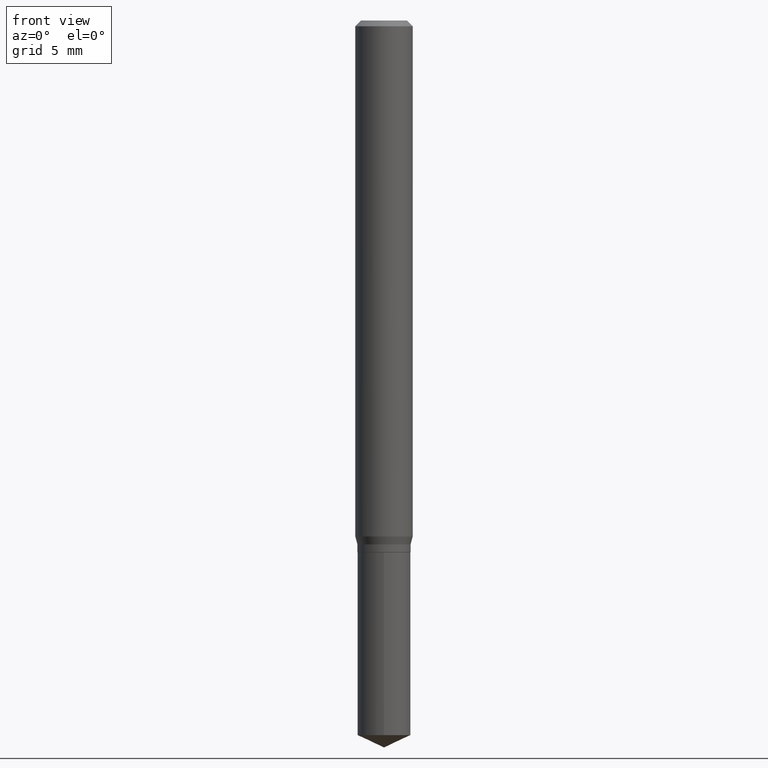
[diagram: clean part render]
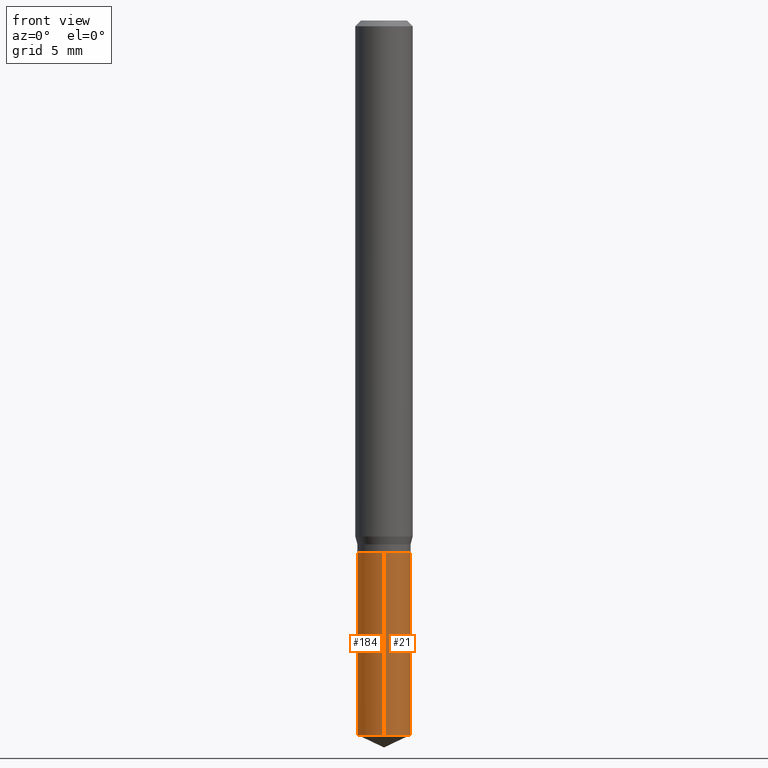
[diagram: same view with one multi-face feature highlighted, each face labeled with its STEP entity id]
A machine part, front view. The highlighted faces form ONE feature: a constant-radius fillet chain: 2 tangent blend faces with common blend radius 1.3894 mm. The faces share edges in the B-rep.
Their STEP definitions:
[1] entity #21 (Cylinder):
#18 = CARTESIAN_POINT ( 'NONE',  ( 3.886668764608105865E-16, 0.05469999999999484996, -1.470592971098921842 ) ) ;
#21 = ADVANCED_FACE ( 'NONE', ( #84 ), #81, .T. ) ;
#42 = CARTESIAN_POINT ( 'NONE',  ( 3.886668764608106358E-16, 0.05469999999999616835, -1.094500000000000028 ) ) ;
#49 = DIRECTION ( 'NONE',  ( -2.445458899330790108E-29, 3.491495526022433599E-15, 1.000000000000000000 ) ) ;
#56 = AXIS2_PLACEMENT_3D ( 'NONE', #443, #100, #404 ) ;
#79 = EDGE_CURVE ( 'NONE', #289, #358, #394, .T. ) ;
#81 = CYLINDRICAL_SURFACE ( 'NONE', #284, 0.05469999999999999862 ) ;
#83 = CARTESIAN_POINT ( 'NONE',  ( -3.819680584694119646E-16, -0.05470000000000382195, -1.094499999999999806 ) ) ;
#84 = FACE_OUTER_BOUND ( 'NONE', #108, .T. ) ;
#94 = CARTESIAN_POINT ( 'NONE',  ( 2.676565608369631794E-29, -3.821426325363822773E-15, -1.094499999999999806 ) ) ;
#100 = DIRECTION ( 'NONE',  ( -2.445458899330790108E-29, 3.491495526022433205E-15, 1.000000000000000000 ) ) ;
#108 = EDGE_LOOP ( 'NONE', ( #232, #392, #454, #221 ) ) ;
#126 = CARTESIAN_POINT ( 'NONE',  ( 2.676565608369631794E-29, -3.821426325363822773E-15, -1.094499999999999806 ) ) ;
#164 = LINE ( 'NONE', #83, #403 ) ;
#201 = EDGE_CURVE ( 'NONE', #408, #442, #217, .T. ) ;
#217 = CIRCLE ( 'NONE', #56, 0.05469999999999999862 ) ;
#220 = CARTESIAN_POINT ( 'NONE',  ( -3.819680584694026955E-16, -0.05470000000000511259, -1.470592971098921398 ) ) ;
#221 = ORIENTED_EDGE ( 'NONE', *, *, #435, .F. ) ;
#232 = ORIENTED_EDGE ( 'NONE', *, *, #201, .T. ) ;
#246 = VECTOR ( 'NONE', #310, 39.37007874015748143 ) ;
#266 = DIRECTION ( 'NONE',  ( -2.445458899330790108E-29, 3.491495526022433205E-15, 1.000000000000000000 ) ) ;
#267 = CARTESIAN_POINT ( 'NONE',  ( 3.886668764608015146E-16, 0.05469999999999617529, -1.094500000000000028 ) ) ;
#276 = LINE ( 'NONE', #267, #246 ) ;
#284 = AXIS2_PLACEMENT_3D ( 'NONE', #126, #266, #416 ) ;
#289 = VERTEX_POINT ( 'NONE', #441 ) ;
#310 = DIRECTION ( 'NONE',  ( -2.445458899330790108E-29, 3.491495526022433599E-15, 1.000000000000000000 ) ) ;
#358 = VERTEX_POINT ( 'NONE', #42 ) ;
#361 = DIRECTION ( 'NONE',  ( -6.982962677686265922E-15, -1.000000000000000000, 2.497118824190368439E-15 ) ) ;
#374 = AXIS2_PLACEMENT_3D ( 'NONE', #94, #472, #361 ) ;
#392 = ORIENTED_EDGE ( 'NONE', *, *, #395, .T. ) ;
#394 = CIRCLE ( 'NONE', #374, 0.05469999999999999862 ) ;
#395 = EDGE_CURVE ( 'NONE', #442, #358, #276, .T. ) ;
#403 = VECTOR ( 'NONE', #49, 39.37007874015748143 ) ;
#404 = DIRECTION ( 'NONE',  ( -6.982962677686265922E-15, -1.000000000000000000, 4.994237648380736877E-15 ) ) ;
#408 = VERTEX_POINT ( 'NONE', #220 ) ;
#416 = DIRECTION ( 'NONE',  ( -6.982962677686265922E-15, -1.000000000000000000, 2.497118824190368439E-15 ) ) ;
#435 = EDGE_CURVE ( 'NONE', #408, #289, #164, .T. ) ;
#441 = CARTESIAN_POINT ( 'NONE',  ( -3.819680584694119646E-16, -0.05470000000000382195, -1.094499999999999806 ) ) ;
#442 = VERTEX_POINT ( 'NONE', #18 ) ;
#443 = CARTESIAN_POINT ( 'NONE',  ( 3.596285511519247290E-29, -5.134553251324192159E-15, -1.470592971098921620 ) ) ;
#454 = ORIENTED_EDGE ( 'NONE', *, *, #79, .F. ) ;
#472 = DIRECTION ( 'NONE',  ( -2.445458899330790108E-29, 3.491495526022433205E-15, 1.000000000000000000 ) ) ;
[2] entity #184 (Cylinder):
#17 = AXIS2_PLACEMENT_3D ( 'NONE', #175, #34, #476 ) ;
#18 = CARTESIAN_POINT ( 'NONE',  ( 3.886668764608105865E-16, 0.05469999999999484996, -1.470592971098921842 ) ) ;
#31 = FACE_OUTER_BOUND ( 'NONE', #183, .T. ) ;
#34 = DIRECTION ( 'NONE',  ( -2.445458899330790108E-29, 3.491495526022433205E-15, 1.000000000000000000 ) ) ;
#42 = CARTESIAN_POINT ( 'NONE',  ( 3.886668764608106358E-16, 0.05469999999999616835, -1.094500000000000028 ) ) ;
#49 = DIRECTION ( 'NONE',  ( -2.445458899330790108E-29, 3.491495526022433599E-15, 1.000000000000000000 ) ) ;
#83 = CARTESIAN_POINT ( 'NONE',  ( -3.819680584694119646E-16, -0.05470000000000382195, -1.094499999999999806 ) ) ;
#130 = EDGE_CURVE ( 'NONE', #442, #408, #421, .T. ) ;
#136 = DIRECTION ( 'NONE',  ( -2.445458899330790108E-29, 3.491495526022433205E-15, 1.000000000000000000 ) ) ;
#140 = ORIENTED_EDGE ( 'NONE', *, *, #435, .T. ) ;
#164 = LINE ( 'NONE', #83, #403 ) ;
#175 = CARTESIAN_POINT ( 'NONE',  ( 2.676565608369631794E-29, -3.821426325363822773E-15, -1.094499999999999806 ) ) ;
#183 = EDGE_LOOP ( 'NONE', ( #410, #451, #140, #370 ) ) ;
#184 = ADVANCED_FACE ( 'NONE', ( #31 ), #450, .T. ) ;
#220 = CARTESIAN_POINT ( 'NONE',  ( -3.819680584694026955E-16, -0.05470000000000511259, -1.470592971098921398 ) ) ;
#243 = DIRECTION ( 'NONE',  ( -6.982962677686265922E-15, -1.000000000000000000, 2.497118824190368439E-15 ) ) ;
#246 = VECTOR ( 'NONE', #310, 39.37007874015748143 ) ;
#263 = CIRCLE ( 'NONE', #481, 0.05469999999999999862 ) ;
#267 = CARTESIAN_POINT ( 'NONE',  ( 3.886668764608015146E-16, 0.05469999999999617529, -1.094500000000000028 ) ) ;
#276 = LINE ( 'NONE', #267, #246 ) ;
#289 = VERTEX_POINT ( 'NONE', #441 ) ;
#310 = DIRECTION ( 'NONE',  ( -2.445458899330790108E-29, 3.491495526022433599E-15, 1.000000000000000000 ) ) ;
#358 = VERTEX_POINT ( 'NONE', #42 ) ;
#364 = AXIS2_PLACEMENT_3D ( 'NONE', #366, #136, #399 ) ;
#366 = CARTESIAN_POINT ( 'NONE',  ( 3.596285511519247290E-29, -5.134553251324192159E-15, -1.470592971098921620 ) ) ;
#370 = ORIENTED_EDGE ( 'NONE', *, *, #470, .F. ) ;
#395 = EDGE_CURVE ( 'NONE', #442, #358, #276, .T. ) ;
#399 = DIRECTION ( 'NONE',  ( -6.982962677686265922E-15, -1.000000000000000000, 4.994237648380736877E-15 ) ) ;
#403 = VECTOR ( 'NONE', #49, 39.37007874015748143 ) ;
#408 = VERTEX_POINT ( 'NONE', #220 ) ;
#410 = ORIENTED_EDGE ( 'NONE', *, *, #395, .F. ) ;
#421 = CIRCLE ( 'NONE', #364, 0.05469999999999999862 ) ;
#435 = EDGE_CURVE ( 'NONE', #408, #289, #164, .T. ) ;
#441 = CARTESIAN_POINT ( 'NONE',  ( -3.819680584694119646E-16, -0.05470000000000382195, -1.094499999999999806 ) ) ;
#442 = VERTEX_POINT ( 'NONE', #18 ) ;
#450 = CYLINDRICAL_SURFACE ( 'NONE', #17, 0.05469999999999999862 ) ;
#451 = ORIENTED_EDGE ( 'NONE', *, *, #130, .T. ) ;
#467 = DIRECTION ( 'NONE',  ( -2.445458899330790108E-29, 3.491495526022433205E-15, 1.000000000000000000 ) ) ;
#469 = CARTESIAN_POINT ( 'NONE',  ( 2.676565608369631794E-29, -3.821426325363822773E-15, -1.094499999999999806 ) ) ;
#470 = EDGE_CURVE ( 'NONE', #358, #289, #263, .T. ) ;
#476 = DIRECTION ( 'NONE',  ( -6.982962677686265922E-15, -1.000000000000000000, 2.497118824190368439E-15 ) ) ;
#481 = AXIS2_PLACEMENT_3D ( 'NONE', #469, #467, #243 ) ;